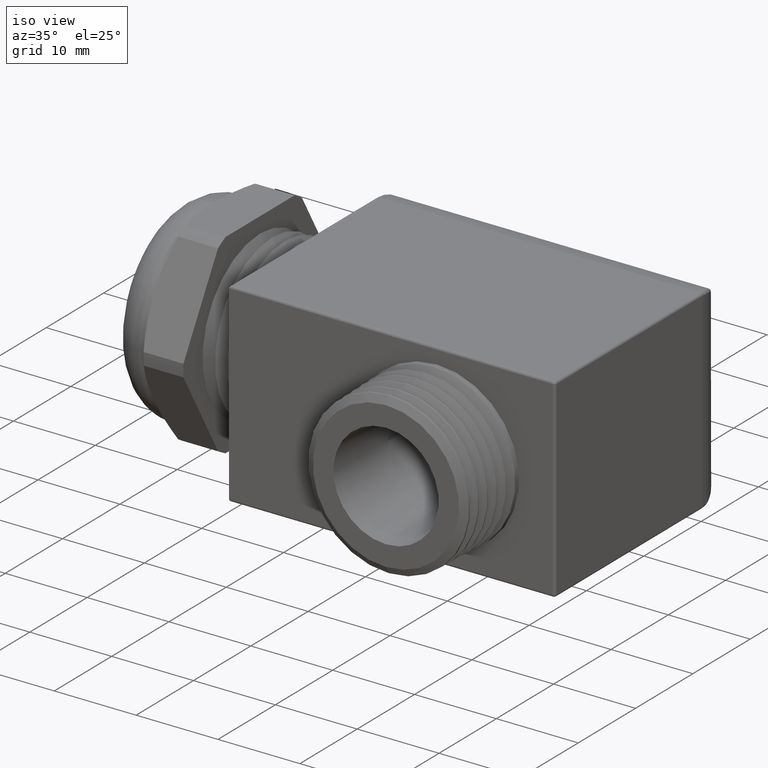
[diagram: clean part render]
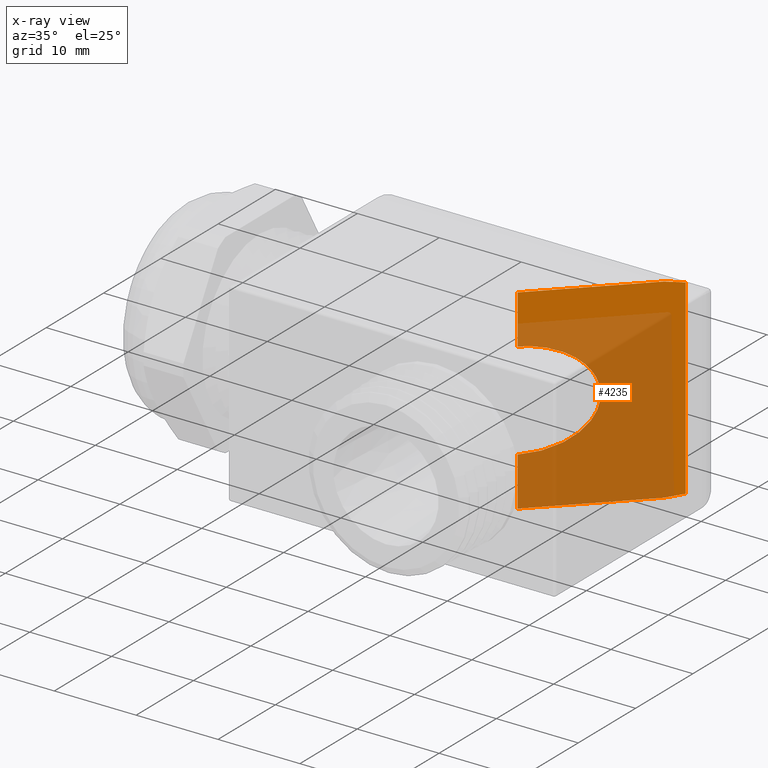
[diagram: x-ray — body ghosted, one internal face saturated and labeled with its STEP entity id]
A machine part, iso view, then the same camera in x-ray: the body is ghosted and one INTERNAL B-rep face — a face not visible from any outside direction — is saturated and labeled: STEP entity #4235.
In plain terms, the highlighted planar face has unit normal (-0.7071, 0.7071, 0).
Its self-contained STEP definition (entity closure, byte-faithful):
#401 = VERTEX_POINT ( 'NONE', #1968 ) ;
#408 = VERTEX_POINT ( 'NONE', #1894 ) ;
#1894 = CARTESIAN_POINT ( 'NONE',  ( 0.9679999999999948600, 1.616321989494815700E-017, 0.2349999999999999900 ) ) ;
#1968 = CARTESIAN_POINT ( 'NONE',  ( 0.9679999999999948600, 0.0000000000000000000, -0.2350000000000001300 ) ) ;
#3774 = VECTOR ( 'NONE', #3860, 39.37007874015748100 ) ;
#3775 = CARTESIAN_POINT ( 'NONE',  ( 0.9679999999999948600, 0.0000000000000000000, -0.4703937007874016700 ) ) ;
#3776 = LINE ( 'NONE', #3775, #3774 ) ;
#3777 = DIRECTION ( 'NONE',  ( -0.7071067811865512400, -0.7071067811865436900, 0.0000000000000000000 ) ) ;
#3778 = DIRECTION ( 'NONE',  ( -0.7071067811865438000, 0.7071067811865513500, 0.0000000000000000000 ) ) ;
#3779 = CARTESIAN_POINT ( 'NONE',  ( 1.443555555555555500, 0.4755555555555555100, -0.4703937007874016700 ) ) ;
#3780 = AXIS2_PLACEMENT_3D ( 'NONE', #3779, #3778, #3777 ) ;
#3781 = PLANE ( 'NONE',  #3780 ) ;
#3782 = FACE_OUTER_BOUND ( 'NONE', #4236, .T. ) ;
#3795 = LINE ( 'NONE', #3832, #3831 ) ;
#3796 = CARTESIAN_POINT ( 'NONE',  ( 0.9679999999999949800, -6.137788176939987500E-018, 0.4699999999999999700 ) ) ;
#3797 = DIRECTION ( 'NONE',  ( 0.0000000000000000000, 0.0000000000000000000, 1.000000000000000000 ) ) ;
#3798 = VECTOR ( 'NONE', #3797, 39.37007874015748100 ) ;
#3799 = CARTESIAN_POINT ( 'NONE',  ( 0.9679999999999948600, 0.0000000000000000000, -0.4703937007874016700 ) ) ;
#3800 = LINE ( 'NONE', #3799, #3798 ) ;
#3801 = CARTESIAN_POINT ( 'NONE',  ( 0.9679999999999948600, 1.616321989494815700E-017, 0.2349999999999999900 ) ) ;
#3813 = CARTESIAN_POINT ( 'NONE',  ( 1.381333333333332600, 0.4133333333333332700, 0.4699999999999999700 ) ) ;
#3814 = CARTESIAN_POINT ( 'NONE',  ( 1.402581134423580300, 0.4345811344235810400, 0.4699999999999999200 ) ) ;
#3815 = CARTESIAN_POINT ( 'NONE',  ( 1.423522936573932600, 0.4555229365739328400, 0.4664069547920675600 ) ) ;
#3825 = CARTESIAN_POINT ( 'NONE',  ( 1.443555555555555500, 0.4755555555555555100, 0.4593243544286515500 ) ) ;
#3826 =( BOUNDED_CURVE ( )  B_SPLINE_CURVE ( 3, ( #3825, #3815, #3814, #3813 ),
 .UNSPECIFIED., .F., .T. ) 
 B_SPLINE_CURVE_WITH_KNOTS ( ( 4, 4 ),
 ( 1.230959417340774700, 1.570796326794896800 ),
 .UNSPECIFIED. ) 
 CURVE ( )  GEOMETRIC_REPRESENTATION_ITEM ( )  RATIONAL_B_SPLINE_CURVE ( ( 1.000000000000000000, 0.9903990397689925700, 0.9903990397689925700, 1.000000000000000000 ) ) 
 REPRESENTATION_ITEM ( '' )  );
#3828 = CARTESIAN_POINT ( 'NONE',  ( 1.443555555555555500, 0.4755555555555555100, 0.4593243544286515500 ) ) ;
#3829 = CARTESIAN_POINT ( 'NONE',  ( 1.381333333333332600, 0.4133333333333332700, 0.4699999999999999700 ) ) ;
#3830 = DIRECTION ( 'NONE',  ( 0.7071067811865512400, 0.7071067811865436900, 0.0000000000000000000 ) ) ;
#3831 = VECTOR ( 'NONE', #3830, 39.37007874015748900 ) ;
#3832 = CARTESIAN_POINT ( 'NONE',  ( 1.218836982058541000, 0.2508369820585433800, 0.4699999999999999700 ) ) ;
#3855 = CARTESIAN_POINT ( 'NONE',  ( 1.437999999999999700, 0.4699999999999999700, 0.2349999999999998500 ) ) ;
#3856 = CARTESIAN_POINT ( 'NONE',  ( 1.437999999999999700, 0.4699999999999999700, -0.2349999999999998500 ) ) ;
#3857 = CARTESIAN_POINT ( 'NONE',  ( 0.9679999999999948600, 0.0000000000000000000, -0.2350000000000001300 ) ) ;
#3858 =( BOUNDED_CURVE ( )  B_SPLINE_CURVE ( 3, ( #3857, #3856, #3855, #3801 ),
 .UNSPECIFIED., .F., .T. ) 
 B_SPLINE_CURVE_WITH_KNOTS ( ( 4, 4 ),
 ( 1.570796326794896800, 4.712388980384689700 ),
 .UNSPECIFIED. ) 
 CURVE ( )  GEOMETRIC_REPRESENTATION_ITEM ( )  RATIONAL_B_SPLINE_CURVE ( ( 1.000000000000000000, 0.3333333333333333100, 0.3333333333333333100, 1.000000000000000000 ) ) 
 REPRESENTATION_ITEM ( '' )  );
#3859 = CARTESIAN_POINT ( 'NONE',  ( 0.9679999999999949800, -6.137788176939987500E-018, -0.4700000000000000300 ) ) ;
#3860 = DIRECTION ( 'NONE',  ( 0.0000000000000000000, 0.0000000000000000000, 1.000000000000000000 ) ) ;
#3916 = CARTESIAN_POINT ( 'NONE',  ( 1.402581134423580300, 0.4345811344235808200, -0.4700000000000000300 ) ) ;
#3917 = CARTESIAN_POINT ( 'NONE',  ( 1.381333333333332600, 0.4133333333333332200, -0.4700000000000000300 ) ) ;
#3918 = CARTESIAN_POINT ( 'NONE',  ( 1.381333333333332600, 0.4133333333333332200, -0.4700000000000000300 ) ) ;
#3926 = CARTESIAN_POINT ( 'NONE',  ( 1.443555555555555500, 0.4755555555555555100, -0.4593243544286518300 ) ) ;
#3927 = DIRECTION ( 'NONE',  ( 0.0000000000000000000, 0.0000000000000000000, 1.000000000000000000 ) ) ;
#3928 = VECTOR ( 'NONE', #3927, 39.37007874015748100 ) ;
#3929 = CARTESIAN_POINT ( 'NONE',  ( 1.443555555555555500, 0.4755555555555555100, -0.4703937007874016700 ) ) ;
#3930 = LINE ( 'NONE', #3929, #3928 ) ;
#4004 = DIRECTION ( 'NONE',  ( -0.7071067811865512400, -0.7071067811865436900, 0.0000000000000000000 ) ) ;
#4005 = VECTOR ( 'NONE', #4004, 39.37007874015748900 ) ;
#4006 = CARTESIAN_POINT ( 'NONE',  ( 0.9817780020556732300, 0.01377800205567830200, -0.4700000000000000300 ) ) ;
#4007 = LINE ( 'NONE', #4006, #4005 ) ;
#4008 = CARTESIAN_POINT ( 'NONE',  ( 1.443555555555555500, 0.4755555555555555100, -0.4593243544286518300 ) ) ;
#4009 = CARTESIAN_POINT ( 'NONE',  ( 1.423522936573932600, 0.4555229365739327200, -0.4664069547920677300 ) ) ;
#4040 =( BOUNDED_CURVE ( )  B_SPLINE_CURVE ( 3, ( #3917, #3916, #4009, #4008 ),
 .UNSPECIFIED., .F., .T. ) 
 B_SPLINE_CURVE_WITH_KNOTS ( ( 4, 4 ),
 ( 4.712388980384689700, 5.052225889838811500 ),
 .UNSPECIFIED. ) 
 CURVE ( )  GEOMETRIC_REPRESENTATION_ITEM ( )  RATIONAL_B_SPLINE_CURVE ( ( 1.000000000000000000, 0.9903990397689925700, 0.9903990397689925700, 1.000000000000000000 ) ) 
 REPRESENTATION_ITEM ( '' )  );
#4235 = ADVANCED_FACE ( 'NONE', ( #3782 ), #3781, .T. ) ;
#4236 = EDGE_LOOP ( 'NONE', ( #4237, #4240, #4243, #4246, #4249, #4306, #4309, #4285 ) ) ;
#4237 = ORIENTED_EDGE ( 'NONE', *, *, #4238, .T. ) ;
#4238 = EDGE_CURVE ( 'NONE', #4239, #401, #3776, .T. ) ;
#4239 = VERTEX_POINT ( 'NONE', #3859 ) ;
#4240 = ORIENTED_EDGE ( 'NONE', *, *, #4242, .T. ) ;
#4242 = EDGE_CURVE ( 'NONE', #401, #408, #3858, .T. ) ;
#4243 = ORIENTED_EDGE ( 'NONE', *, *, #4244, .T. ) ;
#4244 = EDGE_CURVE ( 'NONE', #408, #4245, #3800, .T. ) ;
#4245 = VERTEX_POINT ( 'NONE', #3796 ) ;
#4246 = ORIENTED_EDGE ( 'NONE', *, *, #4247, .T. ) ;
#4247 = EDGE_CURVE ( 'NONE', #4245, #4248, #3795, .T. ) ;
#4248 = VERTEX_POINT ( 'NONE', #3829 ) ;
#4249 = ORIENTED_EDGE ( 'NONE', *, *, #4250, .F. ) ;
#4250 = EDGE_CURVE ( 'NONE', #4251, #4248, #3826, .T. ) ;
#4251 = VERTEX_POINT ( 'NONE', #3828 ) ;
#4283 = EDGE_CURVE ( 'NONE', #4284, #4308, #4040, .T. ) ;
#4284 = VERTEX_POINT ( 'NONE', #3918 ) ;
#4285 = ORIENTED_EDGE ( 'NONE', *, *, #4286, .T. ) ;
#4286 = EDGE_CURVE ( 'NONE', #4284, #4239, #4007, .T. ) ;
#4306 = ORIENTED_EDGE ( 'NONE', *, *, #4307, .F. ) ;
#4307 = EDGE_CURVE ( 'NONE', #4308, #4251, #3930, .T. ) ;
#4308 = VERTEX_POINT ( 'NONE', #3926 ) ;
#4309 = ORIENTED_EDGE ( 'NONE', *, *, #4283, .F. ) ;